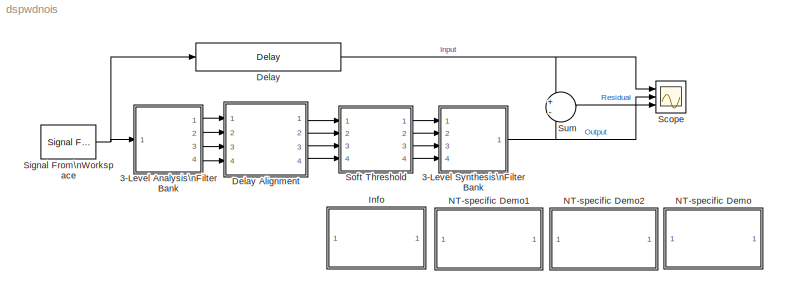
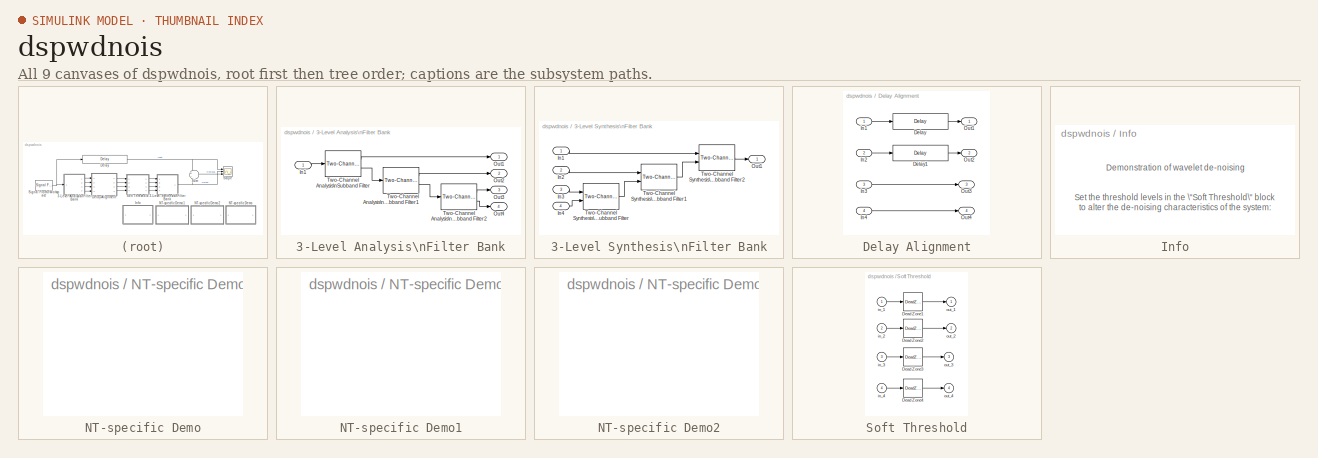
[diagram: thumbnail index - all 9 canvases of the model, root first then tree order]
MODEL dspwdnois
KIND model
CONFIG PreLoadFcn = load dspwlets;
BLOCK [SubSystem] 3-Level Analysis\nFilter Bank
  Ports = [1, 4]
  TreatAsAtomicUnit = off
BLOCK [Inport] 3-Level Analysis\nFilter Bank/In1
  IconDisplay = Port number
BLOCK [Outport] 3-Level Analysis\nFilter Bank/Out1
  IconDisplay = Port number
BLOCK [Outport] 3-Level Analysis\nFilter Bank/Out2
  IconDisplay = Port number
  Port = 2
BLOCK [Outport] 3-Level Analysis\nFilter Bank/Out3
  IconDisplay = Port number
  Port = 3
BLOCK [Outport] 3-Level Analysis\nFilter Bank/Out4
  IconDisplay = Port number
  Port = 4
BLOCK [Reference] 3-Level Analysis\nFilter Bank/Two-Channel Analysis\nSubband Filter  REF=dspmlti4/Two-Channel Analysis\nSubband Filter
  Ports = [1, 2]
  ShowPortLabels = on
  SourceBlock = dspmlti4/Two-Channel Analysis\nSubband Filter
  SourceType = Two-Channel Analysis Subband Filter
  accumFracLength = 30
  accumMode = Same as product output
  accumWordLength = 32
  additionalParams = off
  allowOverrides = on
  firstCoeffFracLength = 15
  firstCoeffMode = Same word length as input
  firstCoeffWordLength = 16
  framing = Maintain input frame size
  hpf = hid
  lpf = lod
  outputFracLength = 14
  outputMode = Same as input
  outputWordLength = 16
  overflowMode = off
  prodOutputFracLength = 30
  prodOutputMode = Same as input
  prodOutputWordLength = 32
  roundingMode = Floor
BLOCK [Reference] 3-Level Analysis\nFilter Bank/Two-Channel Analysis\nSubband Filter1  REF=dspmlti4/Two-Channel Analysis\nSubband Filter
  Ports = [1, 2]
  ShowPortLabels = on
  SourceBlock = dspmlti4/Two-Channel Analysis\nSubband Filter
  SourceType = Two-Channel Analysis Subband Filter
  accumFracLength = 30
  accumMode = Same as product output
  accumWordLength = 32
  additionalParams = off
  allowOverrides = on
  firstCoeffFracLength = 15
  firstCoeffMode = Same word length as input
  firstCoeffWordLength = 16
  framing = Maintain input frame size
  hpf = hid
  lpf = lod
  outputFracLength = 14
  outputMode = Same as input
  outputWordLength = 16
  overflowMode = off
  prodOutputFracLength = 30
  prodOutputMode = Same as input
  prodOutputWordLength = 32
  roundingMode = Floor
BLOCK [Reference] 3-Level Analysis\nFilter Bank/Two-Channel Analysis\nSubband Filter2  REF=dspmlti4/Two-Channel Analysis\nSubband Filter
  Ports = [1, 2]
  ShowPortLabels = on
  SourceBlock = dspmlti4/Two-Channel Analysis\nSubband Filter
  SourceType = Two-Channel Analysis Subband Filter
  accumFracLength = 30
  accumMode = Same as product output
  accumWordLength = 32
  additionalParams = off
  allowOverrides = on
  firstCoeffFracLength = 15
  firstCoeffMode = Same word length as input
  firstCoeffWordLength = 16
  framing = Maintain input frame size
  hpf = hid
  lpf = lod
  outputFracLength = 14
  outputMode = Same as input
  outputWordLength = 16
  overflowMode = off
  prodOutputFracLength = 30
  prodOutputMode = Same as input
  prodOutputWordLength = 32
  roundingMode = Floor
BLOCK [SubSystem] 3-Level Synthesis\nFilter Bank
  Ports = [4, 1]
  TreatAsAtomicUnit = off
BLOCK [Inport] 3-Level Synthesis\nFilter Bank/In1
  IconDisplay = Port number
BLOCK [Inport] 3-Level Synthesis\nFilter Bank/In2
  IconDisplay = Port number
  Port = 2
BLOCK [Inport] 3-Level Synthesis\nFilter Bank/In3
  IconDisplay = Port number
  Port = 3
BLOCK [Inport] 3-Level Synthesis\nFilter Bank/In4
  IconDisplay = Port number
  Port = 4
BLOCK [Outport] 3-Level Synthesis\nFilter Bank/Out1
  IconDisplay = Port number
BLOCK [Reference] 3-Level Synthesis\nFilter Bank/Two-Channel Synthesis\nSubband Filter  REF=dspmlti4/Two-Channel Synthesis\nSubband Filter
  Ports = [2, 1]
  ShowPortLabels = on
  SourceBlock = dspmlti4/Two-Channel Synthesis\nSubband Filter
  SourceType = Two-Channel Synthesis Subband Filter
  accumFracLength = 30
  accumMode = Same as product output
  accumWordLength = 32
  additionalParams = off
  allowOverrides = on
  firstCoeffFracLength = 15
  firstCoeffMode = Same word length as input
  firstCoeffWordLength = 16
  framing = Maintain input frame size
  hpf = hir
  lpf = lor
  outputFracLength = 14
  outputMode = Same as accumulator
  outputWordLength = 16
  overflowMode = off
  prodOutputFracLength = 30
  prodOutputMode = Same as input
  prodOutputWordLength = 32
  roundingMode = Floor
BLOCK [Reference] 3-Level Synthesis\nFilter Bank/Two-Channel Synthesis\nSubband Filter1  REF=dspmlti4/Two-Channel Synthesis\nSubband Filter
  Ports = [2, 1]
  ShowPortLabels = on
  SourceBlock = dspmlti4/Two-Channel Synthesis\nSubband Filter
  SourceType = Two-Channel Synthesis Subband Filter
  accumFracLength = 30
  accumMode = Same as product output
  accumWordLength = 32
  additionalParams = off
  allowOverrides = on
  firstCoeffFracLength = 15
  firstCoeffMode = Same word length as input
  firstCoeffWordLength = 16
  framing = Maintain input frame size
  hpf = hir
  lpf = lor
  outputFracLength = 14
  outputMode = Same as accumulator
  outputWordLength = 16
  overflowMode = off
  prodOutputFracLength = 30
  prodOutputMode = Same as input
  prodOutputWordLength = 32
  roundingMode = Floor
BLOCK [Reference] 3-Level Synthesis\nFilter Bank/Two-Channel Synthesis\nSubband Filter2  REF=dspmlti4/Two-Channel Synthesis\nSubband Filter
  Ports = [2, 1]
  ShowPortLabels = on
  SourceBlock = dspmlti4/Two-Channel Synthesis\nSubband Filter
  SourceType = Two-Channel Synthesis Subband Filter
  accumFracLength = 30
  accumMode = Same as product output
  accumWordLength = 32
  additionalParams = off
  allowOverrides = on
  firstCoeffFracLength = 15
  firstCoeffMode = Same word length as input
  firstCoeffWordLength = 16
  framing = Maintain input frame size
  hpf = hir
  lpf = lor
  outputFracLength = 14
  outputMode = Same as accumulator
  outputWordLength = 16
  overflowMode = off
  prodOutputFracLength = 30
  prodOutputMode = Same as input
  prodOutputWordLength = 32
  roundingMode = Floor
BLOCK [Reference] Delay  REF=dspsigops/Delay
  Ports = [1, 1]
  SourceBlock = dspsigops/Delay
  SourceType = Delay
  delay = 7*(length(lod)-1)
  dif_ic_for_ch = off
  dif_ic_for_dly = off
  dly_unit = Samples
  ic = 0
  ic_detail = on
  reset_popup = None
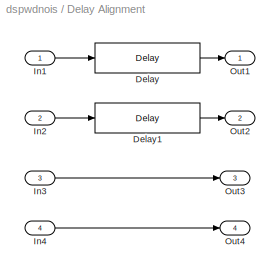
BLOCK [SubSystem] Delay Alignment
  Ports = [4, 4]
  TreatAsAtomicUnit = off
BLOCK [Reference] Delay Alignment/Delay  REF=dspsigops/Delay
  Ports = [1, 1]
  SourceBlock = dspsigops/Delay
  SourceType = Delay
  delay = 3*(length(lod)-1)
  dif_ic_for_ch = off
  dif_ic_for_dly = off
  dly_unit = Samples
  ic = 0
  ic_detail = on
  reset_popup = None
BLOCK [Reference] Delay Alignment/Delay1  REF=dspsigops/Delay
  Ports = [1, 1]
  SourceBlock = dspsigops/Delay
  SourceType = Delay
  delay = length(lod) - 1
  dif_ic_for_ch = off
  dif_ic_for_dly = off
  dly_unit = Samples
  ic = 0
  ic_detail = on
  reset_popup = None
BLOCK [Inport] Delay Alignment/In1
  IconDisplay = Port number
BLOCK [Inport] Delay Alignment/In2
  IconDisplay = Port number
  Port = 2
BLOCK [Inport] Delay Alignment/In3
  IconDisplay = Port number
  Port = 3
BLOCK [Inport] Delay Alignment/In4
  IconDisplay = Port number
  Port = 4
BLOCK [Outport] Delay Alignment/Out1
  IconDisplay = Port number
BLOCK [Outport] Delay Alignment/Out2
  IconDisplay = Port number
  Port = 2
BLOCK [Outport] Delay Alignment/Out3
  IconDisplay = Port number
  Port = 3
BLOCK [Outport] Delay Alignment/Out4
  IconDisplay = Port number
  Port = 4
BLOCK [SubSystem] Info
  MaskDisplay = disp('Info')
  MaskIconFrame = on
  MaskIconOpaque = on
  MaskIconRotate = none
  MaskIconUnits = autoscale
  MaskType = Frame-Based Simulation Info
  Ports = []
  TreatAsAtomicUnit = off
BLOCK [SubSystem] NT-specific Demo
  MaskDisplay = disp('PC/Windows\\nDemo')
  MaskIconFrame = on
  MaskIconOpaque = on
  MaskIconRotate = none
  MaskIconUnits = autoscale
  MaskType = NT-only Demo
  OpenFcn = dspwdnoisf_win32
  Ports = []
  TreatAsAtomicUnit = off
BLOCK [SubSystem] NT-specific Demo1
  MaskDisplay = disp('Frame-Based\\nDemo')
  MaskIconFrame = on
  MaskIconOpaque = on
  MaskIconRotate = none
  MaskIconUnits = autoscale
  MaskType = Frame-Based Demo
  OpenFcn = dspwdnoisf
  Ports = []
  TreatAsAtomicUnit = off
BLOCK [SubSystem] NT-specific Demo2
  MaskDisplay = disp('Fixed-Point\\nDemo')
  MaskIconFrame = on
  MaskIconOpaque = on
  MaskIconRotate = none
  MaskIconUnits = autoscale
  MaskType = Fixed-Point Demo
  OpenFcn = dspwdnoisfp
  Ports = []
  TreatAsAtomicUnit = off
BLOCK [Scope] Scope
  DataFormat = StructureWithTime
  NumInputPorts = 3
  Ports = [3]
  TimeRange = 1025
  YMax = 10~10~5
  YMin = -10~-10~-5
  ZoomMode = xonly
BLOCK [Reference] Signal From\nWorkspace  REF=dspsrcs4/Signal From\nWorkspace
  OutputAfterFinalValue = Setting to zero
  Ports = [0, 1]
  ShowPortLabels = on
  SourceBlock = dspsrcs4/Signal From\nWorkspace
  SourceType = Signal From Workspace
  Ts = ts
  X = noisdopp
  nsamps = 1
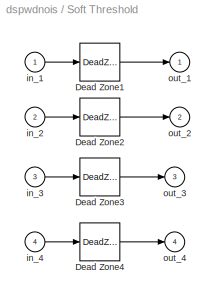
BLOCK [SubSystem] Soft Threshold
  MaskDescription = Apply a soft threshold (deadzone transfer function) to each signal in the decomposition.  First threshold applies to top-most filter bank output.
  MaskDisplay = text(.1,.9,'Dead Zone')\nplot(x,y)
  MaskEnableString = on
  MaskHelp = Vector of thresholds for each decomposition level.\n
  MaskIconFrame = on
  MaskIconOpaque = on
  MaskIconRotate = none
  MaskIconUnits = normalized
  MaskInitialization = x=([-1 1 NaN 0 0 NaN -1 -.5 .5 1]+1)/2*.7+.15;\ny=([0 0 NaN -1 1 NaN -1 0 0 1]+1)/2*.7+.05;
  MaskPromptString = Vector of thresholds for each level:
  MaskStyleString = edit
  MaskToolTipString = on
  MaskTunableValueString = on
  MaskType = Soft Threshold
  MaskValueString = [3 2 1 0]
  MaskVariables = st=@1;
  MaskVisibilityString = on
  Ports = [4, 4]
  ShowPortLabels = off
  TreatAsAtomicUnit = off
BLOCK [DeadZone] Soft Threshold/Dead Zone1
  LowerValue = -st(1)
  UpperValue = st(1)
  ZeroCross = off
BLOCK [DeadZone] Soft Threshold/Dead Zone2
  LowerValue = -st(2)
  UpperValue = st(2)
  ZeroCross = off
BLOCK [DeadZone] Soft Threshold/Dead Zone3
  LowerValue = -st(3)
  UpperValue = st(3)
  ZeroCross = off
BLOCK [DeadZone] Soft Threshold/Dead Zone4
  LowerValue = -st(4)
  UpperValue = st(4)
  ZeroCross = off
BLOCK [Inport] Soft Threshold/in_1
  IconDisplay = Port number
BLOCK [Inport] Soft Threshold/in_2
  IconDisplay = Port number
  Port = 2
BLOCK [Inport] Soft Threshold/in_3
  IconDisplay = Port number
  Port = 3
BLOCK [Inport] Soft Threshold/in_4
  IconDisplay = Port number
  Port = 4
BLOCK [Outport] Soft Threshold/out_1
  IconDisplay = Port number
  InitialOutput = 0
BLOCK [Outport] Soft Threshold/out_2
  IconDisplay = Port number
  InitialOutput = 0
  Port = 2
BLOCK [Outport] Soft Threshold/out_3
  IconDisplay = Port number
  InitialOutput = 0
  Port = 3
BLOCK [Outport] Soft Threshold/out_4
  IconDisplay = Port number
  InitialOutput = 0
  Port = 4
BLOCK [Sum] Sum
  IconShape = round
  Inputs = +-
  Ports = [2, 1]
ANNOTATION Info: Demonstration of wavelet de-noising\n\n\nSet the threshold levels in the \"Soft Threshold\" block\nto alter the de-noising characteristics of the system:\n\nThreshold=[0 0 0 0] -> No de-noising\n(perfect reconstruction)\n\nThreshold=[3 2 1 0] -> Moderate de-noising\n(removes small-scale content from signal)
LINE 3-Level Analysis\nFilter Bank/In1:1 -> 3-Level Analysis\nFilter Bank/Two-Channel Analysis\nSubband Filter:1
LINE 3-Level Analysis\nFilter Bank/Two-Channel Analysis\nSubband Filter1:1 -> 3-Level Analysis\nFilter Bank/Out2:1
LINE 3-Level Analysis\nFilter Bank/Two-Channel Analysis\nSubband Filter1:2 -> 3-Level Analysis\nFilter Bank/Two-Channel Analysis\nSubband Filter2:1
LINE 3-Level Analysis\nFilter Bank/Two-Channel Analysis\nSubband Filter2:1 -> 3-Level Analysis\nFilter Bank/Out3:1
LINE 3-Level Analysis\nFilter Bank/Two-Channel Analysis\nSubband Filter2:2 -> 3-Level Analysis\nFilter Bank/Out4:1
LINE 3-Level Analysis\nFilter Bank/Two-Channel Analysis\nSubband Filter:1 -> 3-Level Analysis\nFilter Bank/Out1:1
LINE 3-Level Analysis\nFilter Bank/Two-Channel Analysis\nSubband Filter:2 -> 3-Level Analysis\nFilter Bank/Two-Channel Analysis\nSubband Filter1:1
LINE 3-Level Analysis\nFilter Bank:1 -> Delay Alignment:1
LINE 3-Level Analysis\nFilter Bank:2 -> Delay Alignment:2
LINE 3-Level Analysis\nFilter Bank:3 -> Delay Alignment:3
LINE 3-Level Analysis\nFilter Bank:4 -> Delay Alignment:4
LINE 3-Level Synthesis\nFilter Bank/In1:1 -> 3-Level Synthesis\nFilter Bank/Two-Channel Synthesis\nSubband Filter2:1
LINE 3-Level Synthesis\nFilter Bank/In2:1 -> 3-Level Synthesis\nFilter Bank/Two-Channel Synthesis\nSubband Filter1:1
LINE 3-Level Synthesis\nFilter Bank/In3:1 -> 3-Level Synthesis\nFilter Bank/Two-Channel Synthesis\nSubband Filter:1
LINE 3-Level Synthesis\nFilter Bank/In4:1 -> 3-Level Synthesis\nFilter Bank/Two-Channel Synthesis\nSubband Filter:2
LINE 3-Level Synthesis\nFilter Bank/Two-Channel Synthesis\nSubband Filter1:1 -> 3-Level Synthesis\nFilter Bank/Two-Channel Synthesis\nSubband Filter2:2
LINE 3-Level Synthesis\nFilter Bank/Two-Channel Synthesis\nSubband Filter2:1 -> 3-Level Synthesis\nFilter Bank/Out1:1
LINE 3-Level Synthesis\nFilter Bank/Two-Channel Synthesis\nSubband Filter:1 -> 3-Level Synthesis\nFilter Bank/Two-Channel Synthesis\nSubband Filter1:2
NET 3-Level Synthesis\nFilter Bank:1 -> Scope:2, Sum:2
LINE Delay Alignment/Delay1:1 -> Delay Alignment/Out2:1
LINE Delay Alignment/Delay:1 -> Delay Alignment/Out1:1
LINE Delay Alignment/In1:1 -> Delay Alignment/Delay:1
LINE Delay Alignment/In2:1 -> Delay Alignment/Delay1:1
LINE Delay Alignment/In3:1 -> Delay Alignment/Out3:1
LINE Delay Alignment/In4:1 -> Delay Alignment/Out4:1
LINE Delay Alignment:1 -> Soft Threshold:1
LINE Delay Alignment:2 -> Soft Threshold:2
LINE Delay Alignment:3 -> Soft Threshold:3
LINE Delay Alignment:4 -> Soft Threshold:4
NET Delay:1 -> Scope:1, Sum:1
NET Signal From\nWorkspace:1 -> 3-Level Analysis\nFilter Bank:1, Delay:1
LINE Soft Threshold/Dead Zone1:1 -> Soft Threshold/out_1:1
LINE Soft Threshold/Dead Zone2:1 -> Soft Threshold/out_2:1
LINE Soft Threshold/Dead Zone3:1 -> Soft Threshold/out_3:1
LINE Soft Threshold/Dead Zone4:1 -> Soft Threshold/out_4:1
LINE Soft Threshold/in_1:1 -> Soft Threshold/Dead Zone1:1
LINE Soft Threshold/in_2:1 -> Soft Threshold/Dead Zone2:1
LINE Soft Threshold/in_3:1 -> Soft Threshold/Dead Zone3:1
LINE Soft Threshold/in_4:1 -> Soft Threshold/Dead Zone4:1
LINE Soft Threshold:1 -> 3-Level Synthesis\nFilter Bank:1
LINE Soft Threshold:2 -> 3-Level Synthesis\nFilter Bank:2
LINE Soft Threshold:3 -> 3-Level Synthesis\nFilter Bank:3
LINE Soft Threshold:4 -> 3-Level Synthesis\nFilter Bank:4
LINE Sum:1 -> Scope:3
note: NET lines group one-source signal fan-out (src -> all destinations, sorted); 1:1 wires keep LINE
